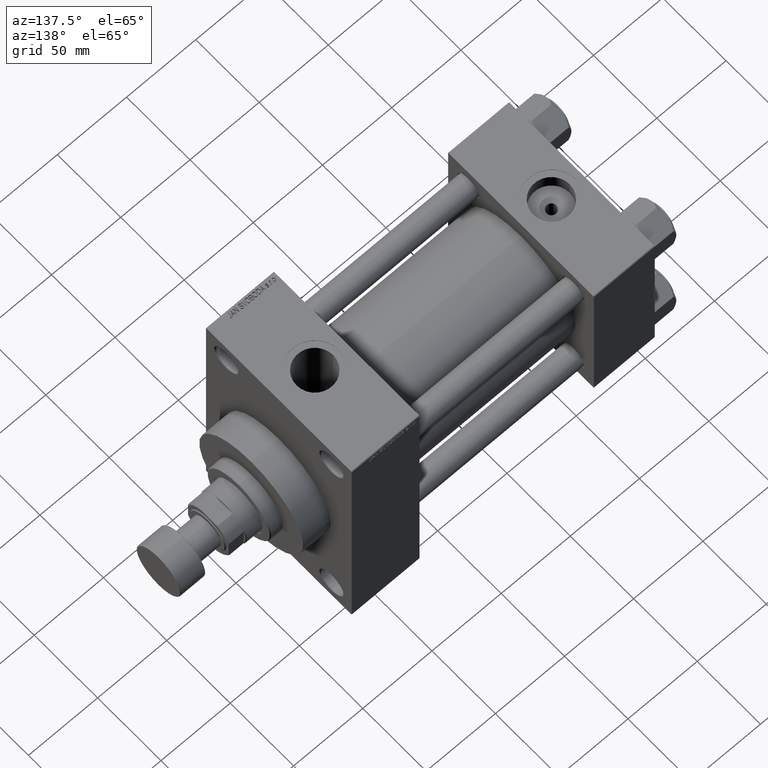
[diagram: clean part render]
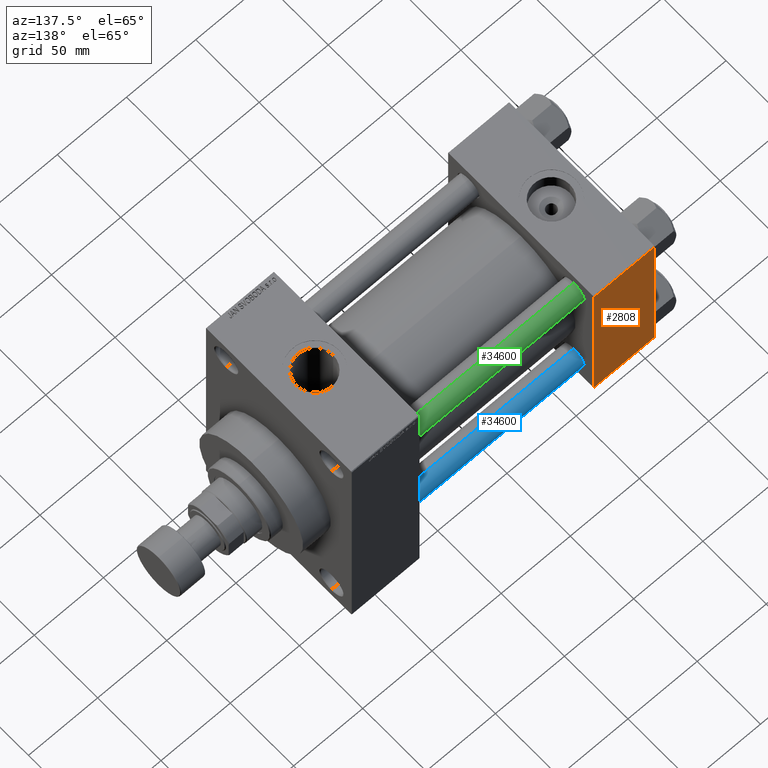
[diagram: same view with three faces highlighted in distinct colors, each labeled with its STEP entity id]
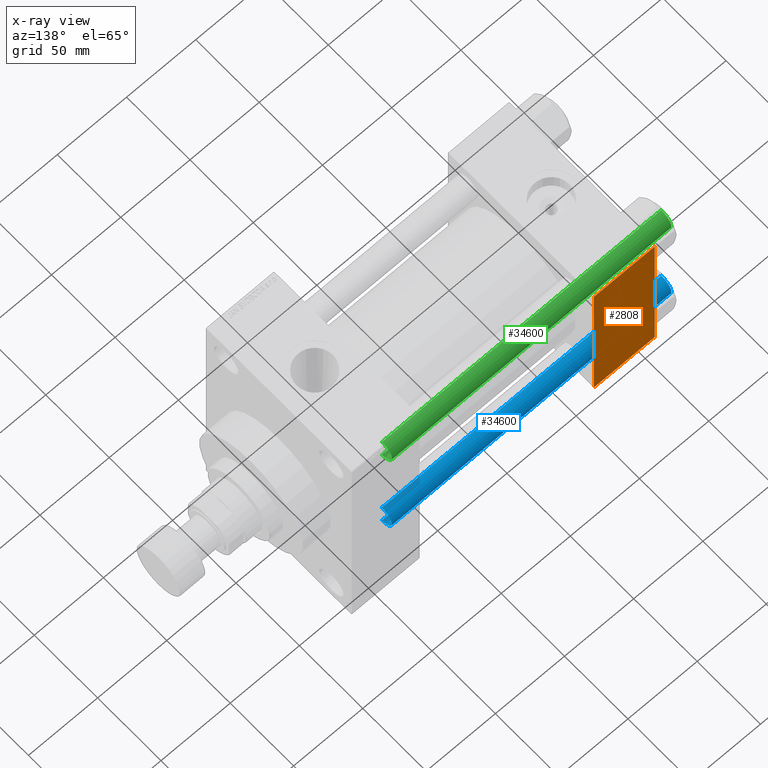
[diagram: x-ray of the same camera — body ghosted, the three highlighted faces saturated]
A machine part, auxiliary view with three faces highlighted in distinct colors.
The next image is the same camera in x-ray (body ghosted, the three faces saturated) — at least one of them is partly hidden behind the body in this view.
Their STEP definitions:

[orange] entity #2808 — the highlighted planar face has unit normal (0, 1, 0).
#94 = VERTEX_POINT ( 'NONE', #644 ) ;
#644 = CARTESIAN_POINT ( 'NONE',  ( 44.00000000000000000, 57.50000000000000000, 57.00000000000004263 ) ) ;
#947 = DIRECTION ( 'NONE',  ( 0.000000000000000000, 0.000000000000000000, -1.000000000000000000 ) ) ;
#2808 = ADVANCED_FACE ( 'NONE', ( #39699 ), #29003, .T. ) ;
#4830 = EDGE_CURVE ( 'NONE', #44230, #4873, #19528, .T. ) ;
#4873 = VERTEX_POINT ( 'NONE', #17776 ) ;
#6792 = ORIENTED_EDGE ( 'NONE', *, *, #43563, .T. ) ;
#6846 = EDGE_CURVE ( 'NONE', #13317, #4873, #45927, .T. ) ;
#8629 = EDGE_CURVE ( 'NONE', #94, #13317, #9199, .T. ) ;
#8901 = VECTOR ( 'NONE', #35076, 1000.000000000000000 ) ;
#9199 = LINE ( 'NONE', #30888, #10567 ) ;
#10540 = VECTOR ( 'NONE', #38598, 1000.000000000000000 ) ;
#10567 = VECTOR ( 'NONE', #947, 1000.000000000000000 ) ;
#10722 = DIRECTION ( 'NONE',  ( -0.000000000000000000, 1.000000000000000000, 0.000000000000000000 ) ) ;
#13113 = DIRECTION ( 'NONE',  ( 1.000000000000000000, 0.000000000000000000, 0.000000000000000000 ) ) ;
#13317 = VERTEX_POINT ( 'NONE', #16236 ) ;
#14545 = ORIENTED_EDGE ( 'NONE', *, *, #4830, .F. ) ;
#16236 = CARTESIAN_POINT ( 'NONE',  ( 44.00000000000000000, 57.50000000000000000, -56.99999999999997158 ) ) ;
#17776 = CARTESIAN_POINT ( 'NONE',  ( 0.000000000000000000, 57.50000000000000000, -56.99999999999997158 ) ) ;
#19528 = LINE ( 'NONE', #31194, #8901 ) ;
#19727 = CARTESIAN_POINT ( 'NONE',  ( 0.000000000000000000, 57.50000000000000000, 57.00000000000004263 ) ) ;
#19729 = AXIS2_PLACEMENT_3D ( 'NONE', #32885, #10722, #25117 ) ;
#22892 = EDGE_LOOP ( 'NONE', ( #34049, #41165, #14545, #6792 ) ) ;
#25117 = DIRECTION ( 'NONE',  ( 0.000000000000000000, -0.000000000000000000, 1.000000000000000000 ) ) ;
#29003 = PLANE ( 'NONE',  #19729 ) ;
#30888 = CARTESIAN_POINT ( 'NONE',  ( 44.00000000000000000, 57.50000000000000000, 57.50000000000001421 ) ) ;
#31194 = CARTESIAN_POINT ( 'NONE',  ( 0.000000000000000000, 57.50000000000000000, 57.50000000000001421 ) ) ;
#32885 = CARTESIAN_POINT ( 'NONE',  ( 44.00000000000000000, 57.50000000000000000, 57.50000000000001421 ) ) ;
#34049 = ORIENTED_EDGE ( 'NONE', *, *, #8629, .T. ) ;
#35076 = DIRECTION ( 'NONE',  ( 0.000000000000000000, 0.000000000000000000, -1.000000000000000000 ) ) ;
#38025 = VECTOR ( 'NONE', #13113, 1000.000000000000000 ) ;
#38598 = DIRECTION ( 'NONE',  ( -1.000000000000000000, 0.000000000000000000, 0.000000000000000000 ) ) ;
#39699 = FACE_OUTER_BOUND ( 'NONE', #22892, .T. ) ;
#41165 = ORIENTED_EDGE ( 'NONE', *, *, #6846, .T. ) ;
#42251 = CARTESIAN_POINT ( 'NONE',  ( 44.00000000000000000, 57.50000000000000000, -57.00000000000000000 ) ) ;
#43533 = CARTESIAN_POINT ( 'NONE',  ( 44.00000000000000000, 57.50000000000000000, 57.00000000000004263 ) ) ;
#43563 = EDGE_CURVE ( 'NONE', #44230, #94, #43772, .T. ) ;
#43772 = LINE ( 'NONE', #43533, #38025 ) ;
#44230 = VERTEX_POINT ( 'NONE', #19727 ) ;
#45927 = LINE ( 'NONE', #42251, #10540 ) ;

[blue] entity #34600 — the highlighted cylindrical surface (edge-blend (fillet) strip) has radius 8 mm, axis along (-1, -0, 0).
#1906 = CARTESIAN_POINT ( 'NONE',  ( 8.000000000000000000, 9.797174393178823685E-16, 0.5000000000001947331 ) ) ;
#3395 = DIRECTION ( 'NONE',  ( -0.000000000000000000, -0.000000000000000000, -1.000000000000000000 ) ) ;
#3557 = AXIS2_PLACEMENT_3D ( 'NONE', #17759, #28735, #5840 ) ;
#4638 = VERTEX_POINT ( 'NONE', #22690 ) ;
#5840 = DIRECTION ( 'NONE',  ( -1.000000000000000000, 0.000000000000000000, 0.000000000000000000 ) ) ;
#6531 = DIRECTION ( 'NONE',  ( 1.000000000000000000, 0.000000000000000000, 0.000000000000000000 ) ) ;
#7903 = EDGE_CURVE ( 'NONE', #16919, #23403, #10901, .T. ) ;
#9833 = VERTEX_POINT ( 'NONE', #42654 ) ;
#10901 = LINE ( 'NONE', #25527, #44006 ) ;
#12755 = AXIS2_PLACEMENT_3D ( 'NONE', #41359, #19215, #22629 ) ;
#16261 = VECTOR ( 'NONE', #3395, 1000.000000000000000 ) ;
#16654 = CIRCLE ( 'NONE', #12755, 8.000000000000000000 ) ;
#16919 = VERTEX_POINT ( 'NONE', #25779 ) ;
#17255 = CARTESIAN_POINT ( 'NONE',  ( 0.000000000000000000, 0.000000000000000000, 202.5000000000000853 ) ) ;
#17621 = AXIS2_PLACEMENT_3D ( 'NONE', #17255, #28950, #6531 ) ;
#17759 = CARTESIAN_POINT ( 'NONE',  ( 0.000000000000000000, 0.000000000000000000, 203.0000000000000000 ) ) ;
#19215 = DIRECTION ( 'NONE',  ( -0.000000000000000000, -0.000000000000000000, 1.000000000000000000 ) ) ;
#21003 = EDGE_LOOP ( 'NONE', ( #22289, #32790, #31981, #26700 ) ) ;
#21429 = CARTESIAN_POINT ( 'NONE',  ( -8.000000000000000000, 0.000000000000000000, 203.0000000000000000 ) ) ;
#22289 = ORIENTED_EDGE ( 'NONE', *, *, #37862, .T. ) ;
#22629 = DIRECTION ( 'NONE',  ( 1.000000000000000000, 0.000000000000000000, 0.000000000000000000 ) ) ;
#22690 = CARTESIAN_POINT ( 'NONE',  ( -8.000000000000000000, 0.000000000000000000, 202.5000000000000853 ) ) ;
#23101 = CIRCLE ( 'NONE', #17621, 8.000000000000000000 ) ;
#23403 = VERTEX_POINT ( 'NONE', #1906 ) ;
#25527 = CARTESIAN_POINT ( 'NONE',  ( 8.000000000000000000, 9.797174393178823685E-16, 203.0000000000000000 ) ) ;
#25571 = LINE ( 'NONE', #21429, #16261 ) ;
#25779 = CARTESIAN_POINT ( 'NONE',  ( 8.000000000000000000, 9.797174393178823685E-16, 202.5000000000000853 ) ) ;
#26700 = ORIENTED_EDGE ( 'NONE', *, *, #47417, .F. ) ;
#28493 = FACE_OUTER_BOUND ( 'NONE', #21003, .T. ) ;
#28735 = DIRECTION ( 'NONE',  ( -0.000000000000000000, -0.000000000000000000, -1.000000000000000000 ) ) ;
#28950 = DIRECTION ( 'NONE',  ( 0.000000000000000000, 0.000000000000000000, -1.000000000000000000 ) ) ;
#31001 = EDGE_CURVE ( 'NONE', #23403, #9833, #16654, .T. ) ;
#31981 = ORIENTED_EDGE ( 'NONE', *, *, #31001, .T. ) ;
#32790 = ORIENTED_EDGE ( 'NONE', *, *, #7903, .T. ) ;
#34600 = ADVANCED_FACE ( 'NONE', ( #28493 ), #46507, .T. ) ;
#37862 = EDGE_CURVE ( 'NONE', #4638, #16919, #23101, .T. ) ;
#40590 = DIRECTION ( 'NONE',  ( -0.000000000000000000, -0.000000000000000000, -1.000000000000000000 ) ) ;
#41359 = CARTESIAN_POINT ( 'NONE',  ( 0.000000000000000000, 0.000000000000000000, 0.5000000000001947331 ) ) ;
#42654 = CARTESIAN_POINT ( 'NONE',  ( -8.000000000000000000, 0.000000000000000000, 0.5000000000001947331 ) ) ;
#44006 = VECTOR ( 'NONE', #40590, 1000.000000000000000 ) ;
#46507 = CYLINDRICAL_SURFACE ( 'NONE', #3557, 8.000000000000000000 ) ;
#47417 = EDGE_CURVE ( 'NONE', #4638, #9833, #25571, .T. ) ;

[green] entity #34600 — the highlighted cylindrical surface (edge-blend (fillet) strip) has radius 8 mm, axis along (1, -0, -0).
#1906 = CARTESIAN_POINT ( 'NONE',  ( 8.000000000000000000, 9.797174393178823685E-16, 0.5000000000001947331 ) ) ;
#3395 = DIRECTION ( 'NONE',  ( -0.000000000000000000, -0.000000000000000000, -1.000000000000000000 ) ) ;
#3557 = AXIS2_PLACEMENT_3D ( 'NONE', #17759, #28735, #5840 ) ;
#4638 = VERTEX_POINT ( 'NONE', #22690 ) ;
#5840 = DIRECTION ( 'NONE',  ( -1.000000000000000000, 0.000000000000000000, 0.000000000000000000 ) ) ;
#6531 = DIRECTION ( 'NONE',  ( 1.000000000000000000, 0.000000000000000000, 0.000000000000000000 ) ) ;
#7903 = EDGE_CURVE ( 'NONE', #16919, #23403, #10901, .T. ) ;
#9833 = VERTEX_POINT ( 'NONE', #42654 ) ;
#10901 = LINE ( 'NONE', #25527, #44006 ) ;
#12755 = AXIS2_PLACEMENT_3D ( 'NONE', #41359, #19215, #22629 ) ;
#16261 = VECTOR ( 'NONE', #3395, 1000.000000000000000 ) ;
#16654 = CIRCLE ( 'NONE', #12755, 8.000000000000000000 ) ;
#16919 = VERTEX_POINT ( 'NONE', #25779 ) ;
#17255 = CARTESIAN_POINT ( 'NONE',  ( 0.000000000000000000, 0.000000000000000000, 202.5000000000000853 ) ) ;
#17621 = AXIS2_PLACEMENT_3D ( 'NONE', #17255, #28950, #6531 ) ;
#17759 = CARTESIAN_POINT ( 'NONE',  ( 0.000000000000000000, 0.000000000000000000, 203.0000000000000000 ) ) ;
#19215 = DIRECTION ( 'NONE',  ( -0.000000000000000000, -0.000000000000000000, 1.000000000000000000 ) ) ;
#21003 = EDGE_LOOP ( 'NONE', ( #22289, #32790, #31981, #26700 ) ) ;
#21429 = CARTESIAN_POINT ( 'NONE',  ( -8.000000000000000000, 0.000000000000000000, 203.0000000000000000 ) ) ;
#22289 = ORIENTED_EDGE ( 'NONE', *, *, #37862, .T. ) ;
#22629 = DIRECTION ( 'NONE',  ( 1.000000000000000000, 0.000000000000000000, 0.000000000000000000 ) ) ;
#22690 = CARTESIAN_POINT ( 'NONE',  ( -8.000000000000000000, 0.000000000000000000, 202.5000000000000853 ) ) ;
#23101 = CIRCLE ( 'NONE', #17621, 8.000000000000000000 ) ;
#23403 = VERTEX_POINT ( 'NONE', #1906 ) ;
#25527 = CARTESIAN_POINT ( 'NONE',  ( 8.000000000000000000, 9.797174393178823685E-16, 203.0000000000000000 ) ) ;
#25571 = LINE ( 'NONE', #21429, #16261 ) ;
#25779 = CARTESIAN_POINT ( 'NONE',  ( 8.000000000000000000, 9.797174393178823685E-16, 202.5000000000000853 ) ) ;
#26700 = ORIENTED_EDGE ( 'NONE', *, *, #47417, .F. ) ;
#28493 = FACE_OUTER_BOUND ( 'NONE', #21003, .T. ) ;
#28735 = DIRECTION ( 'NONE',  ( -0.000000000000000000, -0.000000000000000000, -1.000000000000000000 ) ) ;
#28950 = DIRECTION ( 'NONE',  ( 0.000000000000000000, 0.000000000000000000, -1.000000000000000000 ) ) ;
#31001 = EDGE_CURVE ( 'NONE', #23403, #9833, #16654, .T. ) ;
#31981 = ORIENTED_EDGE ( 'NONE', *, *, #31001, .T. ) ;
#32790 = ORIENTED_EDGE ( 'NONE', *, *, #7903, .T. ) ;
#34600 = ADVANCED_FACE ( 'NONE', ( #28493 ), #46507, .T. ) ;
#37862 = EDGE_CURVE ( 'NONE', #4638, #16919, #23101, .T. ) ;
#40590 = DIRECTION ( 'NONE',  ( -0.000000000000000000, -0.000000000000000000, -1.000000000000000000 ) ) ;
#41359 = CARTESIAN_POINT ( 'NONE',  ( 0.000000000000000000, 0.000000000000000000, 0.5000000000001947331 ) ) ;
#42654 = CARTESIAN_POINT ( 'NONE',  ( -8.000000000000000000, 0.000000000000000000, 0.5000000000001947331 ) ) ;
#44006 = VECTOR ( 'NONE', #40590, 1000.000000000000000 ) ;
#46507 = CYLINDRICAL_SURFACE ( 'NONE', #3557, 8.000000000000000000 ) ;
#47417 = EDGE_CURVE ( 'NONE', #4638, #9833, #25571, .T. ) ;